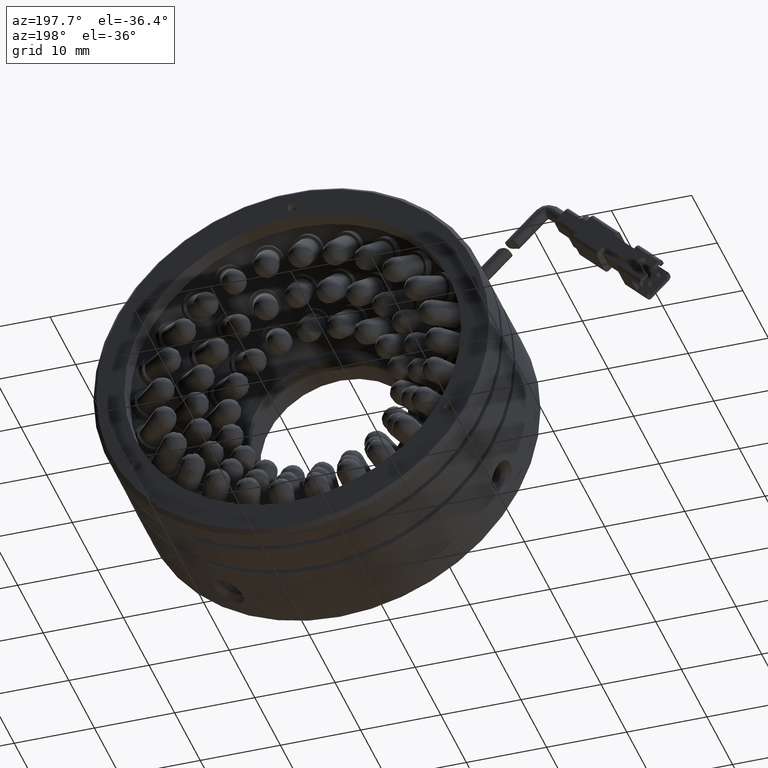
[diagram: clean part render]
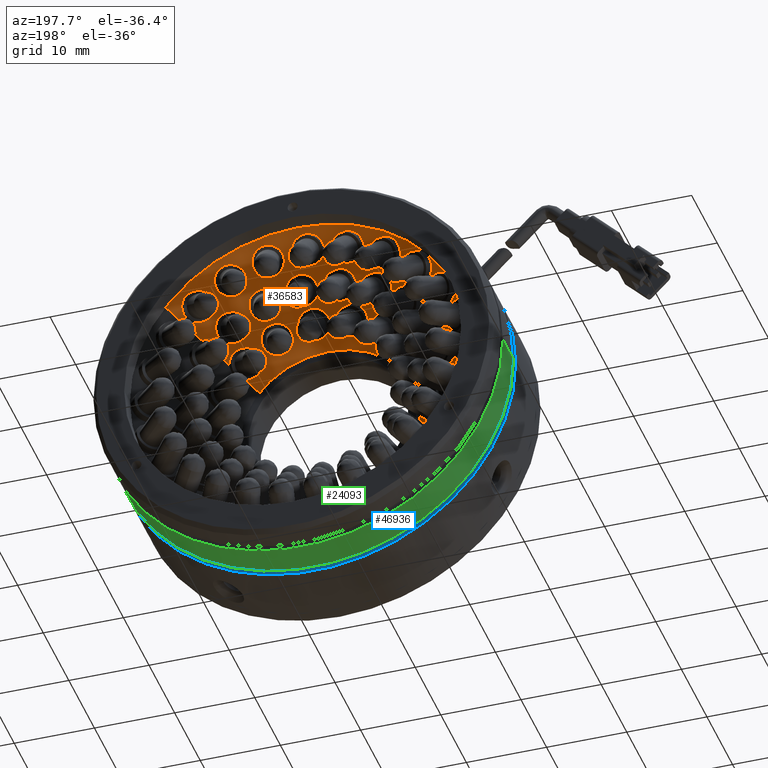
[diagram: same view with three faces highlighted in distinct colors, each labeled with its STEP entity id]
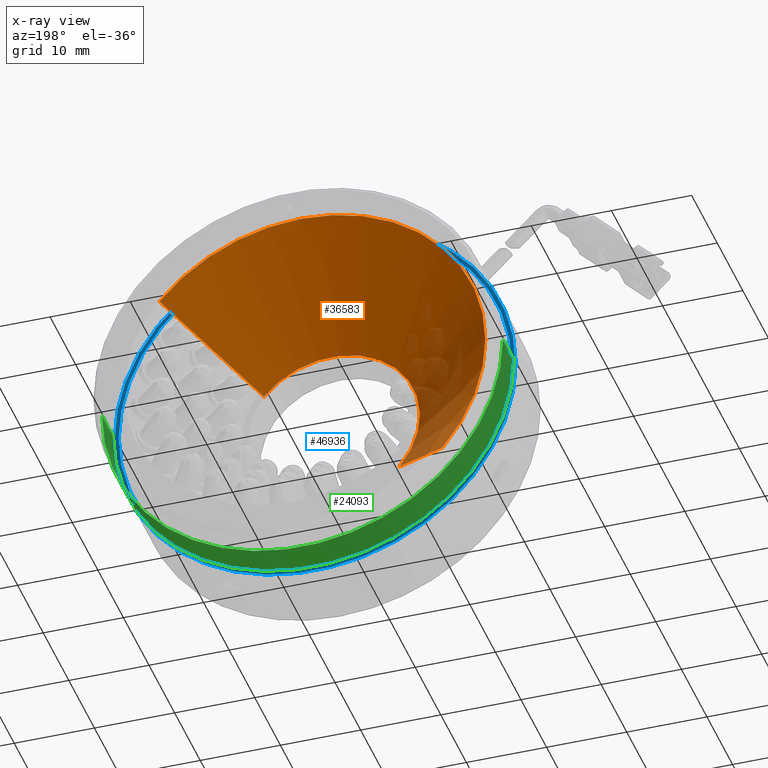
[diagram: x-ray of the same camera — body ghosted, the three highlighted faces saturated]
A machine part, auxiliary view with three faces highlighted in distinct colors.
The next image is the same camera in x-ray (body ghosted, the three faces saturated) — at least one of them is partly hidden behind the body in this view.
Their STEP definitions:

[orange] entity #36583 — the highlighted conical surface has half-angle 45 deg.
#7071 = CARTESIAN_POINT ( 'NONE',  ( 13.62557275425014100, 15.95107685953529900, 14.74545292259360400 ) ) ;
#7480 = VERTEX_POINT ( 'NONE', #54855 ) ;
#8818 = ORIENTED_EDGE ( 'NONE', *, *, #34737, .F. ) ;
#10636 = VECTOR ( 'NONE', #43060, 1000.000000000000100 ) ;
#10975 = CARTESIAN_POINT ( 'NONE',  ( -4.025818638713078100, 3.951076859535329600, 3.557538378468061400E-016 ) ) ;
#14308 = DIRECTION ( 'NONE',  ( 0.5426703717974856700, 0.7071067811865463500, 0.4533308588362150400 ) ) ;
#15074 = VERTEX_POINT ( 'NONE', #47553 ) ;
#15586 = ORIENTED_EDGE ( 'NONE', *, *, #33050, .T. ) ;
#15807 = DIRECTION ( 'NONE',  ( -0.7674517996940528600, 0.0000000000000000000, -0.6411066488084172800 ) ) ;
#15832 = DIRECTION ( 'NONE',  ( 0.7674517996940528600, 0.0000000000000000000, 0.6411066488084172800 ) ) ;
#18623 = DIRECTION ( 'NONE',  ( -0.0000000000000000000, -1.000000000000000000, 0.0000000000000000000 ) ) ;
#19120 = CARTESIAN_POINT ( 'NONE',  ( -21.67721003167629600, 15.95107685953530200, -14.74545292259360700 ) ) ;
#19325 = VECTOR ( 'NONE', #14308, 1000.000000000000100 ) ;
#20530 = CARTESIAN_POINT ( 'NONE',  ( -4.025818638713078100, 15.95107685953530200, 3.557538378468061400E-016 ) ) ;
#20950 = CIRCLE ( 'NONE', #37207, 23.00000000000000400 ) ;
#23076 = EDGE_CURVE ( 'NONE', #7480, #15074, #48368, .T. ) ;
#25354 = DIRECTION ( 'NONE',  ( 0.0000000000000000000, 1.000000000000000000, 0.0000000000000000000 ) ) ;
#27223 = FACE_OUTER_BOUND ( 'NONE', #46145, .T. ) ;
#27702 = ORIENTED_EDGE ( 'NONE', *, *, #38438, .F. ) ;
#32733 = VERTEX_POINT ( 'NONE', #7071 ) ;
#33050 = EDGE_CURVE ( 'NONE', #15074, #54018, #37745, .T. ) ;
#34737 = EDGE_CURVE ( 'NONE', #32733, #54018, #20950, .T. ) ;
#36583 = ADVANCED_FACE ( 'NONE', ( #27223 ), #53399, .F. ) ;
#37207 = AXIS2_PLACEMENT_3D ( 'NONE', #47348, #18623, #52133 ) ;
#37745 = LINE ( 'NONE', #19120, #10636 ) ;
#38438 = EDGE_CURVE ( 'NONE', #7480, #32733, #44835, .T. ) ;
#43060 = DIRECTION ( 'NONE',  ( -0.5426703717974856700, 0.7071067811865463500, -0.4533308588362151600 ) ) ;
#44612 = DIRECTION ( 'NONE',  ( -0.0000000000000000000, -1.000000000000000000, 0.0000000000000000000 ) ) ;
#44835 = LINE ( 'NONE', #47884, #19325 ) ;
#46145 = EDGE_LOOP ( 'NONE', ( #59048, #15586, #8818, #27702 ) ) ;
#47348 = CARTESIAN_POINT ( 'NONE',  ( -4.025818638713078100, 15.95107685953529900, 3.557538378468061400E-016 ) ) ;
#47553 = CARTESIAN_POINT ( 'NONE',  ( -12.46778843534765400, 3.951076859535327800, -7.052173136892588600 ) ) ;
#47884 = CARTESIAN_POINT ( 'NONE',  ( 13.62557275425014500, 15.95107685953530200, 14.74545292259360500 ) ) ;
#48368 = CIRCLE ( 'NONE', #55236, 11.00000000000000200 ) ;
#49798 = AXIS2_PLACEMENT_3D ( 'NONE', #20530, #25354, #15832 ) ;
#51535 = CARTESIAN_POINT ( 'NONE',  ( -21.67721003167629600, 15.95107685953529900, -14.74545292259360500 ) ) ;
#52133 = DIRECTION ( 'NONE',  ( -0.7674517996940528600, 0.0000000000000000000, -0.6411066488084172800 ) ) ;
#53399 = CONICAL_SURFACE ( 'NONE', #49798, 23.00000000000001100, 0.7853981633974499400 ) ;
#54018 = VERTEX_POINT ( 'NONE', #51535 ) ;
#54855 = CARTESIAN_POINT ( 'NONE',  ( 4.416151157921502700, 3.951076859535327800, 7.052173136892588600 ) ) ;
#55236 = AXIS2_PLACEMENT_3D ( 'NONE', #10975, #44612, #15807 ) ;
#59048 = ORIENTED_EDGE ( 'NONE', *, *, #23076, .T. ) ;

[blue] entity #46936 — the highlighted planar face has unit normal (0, -1, 0).
#1064 = AXIS2_PLACEMENT_3D ( 'NONE', #13769, #47351, #18630 ) ;
#1355 = CARTESIAN_POINT ( 'NONE',  ( 20.47418136128692400, 10.36823414706071000, 3.361451086403000600E-015 ) ) ;
#2155 = CIRCLE ( 'NONE', #1064, 25.00000000000000000 ) ;
#13769 = CARTESIAN_POINT ( 'NONE',  ( -4.025818638713078100, 10.36823414706071000, 3.557538378468061400E-016 ) ) ;
#13841 = CARTESIAN_POINT ( 'NONE',  ( -4.025818638713078100, 10.36823414706071000, 3.557538378468061400E-016 ) ) ;
#14075 = DIRECTION ( 'NONE',  ( 0.0000000000000000000, 1.000000000000000000, -0.0000000000000000000 ) ) ;
#15166 = CARTESIAN_POINT ( 'NONE',  ( -28.52581863871307600, 10.36823414706071000, 3.504412472016271700E-016 ) ) ;
#15710 = EDGE_CURVE ( 'NONE', #26388, #17611, #49993, .T. ) ;
#17611 = VERTEX_POINT ( 'NONE', #15166 ) ;
#18630 = DIRECTION ( 'NONE',  ( -1.000000000000000000, 0.0000000000000000000, -2.168404344971001200E-019 ) ) ;
#18708 = DIRECTION ( 'NONE',  ( -1.000000000000000000, 0.0000000000000000000, -2.168404344971005700E-019 ) ) ;
#18783 = FACE_OUTER_BOUND ( 'NONE', #49197, .T. ) ;
#19600 = AXIS2_PLACEMENT_3D ( 'NONE', #29268, #14075, #29252 ) ;
#25608 = CARTESIAN_POINT ( 'NONE',  ( -4.025818638713078100, 10.36823414706071000, 25.00000000000000000 ) ) ;
#25702 = VERTEX_POINT ( 'NONE', #50987 ) ;
#26388 = VERTEX_POINT ( 'NONE', #1355 ) ;
#27026 = DIRECTION ( 'NONE',  ( -0.0000000000000000000, -1.000000000000000000, 0.0000000000000000000 ) ) ;
#27723 = ORIENTED_EDGE ( 'NONE', *, *, #44385, .F. ) ;
#29252 = DIRECTION ( 'NONE',  ( -1.000000000000000000, 0.0000000000000000000, -2.168404344971005700E-019 ) ) ;
#29268 = CARTESIAN_POINT ( 'NONE',  ( -4.025818638713078100, 10.36823414706071000, 3.557538378468061400E-016 ) ) ;
#29864 = VERTEX_POINT ( 'NONE', #57358 ) ;
#30415 = DIRECTION ( 'NONE',  ( 1.000000000000000000, 0.0000000000000000000, 2.168404344971008400E-019 ) ) ;
#30500 = CIRCLE ( 'NONE', #47009, 24.50000000000000000 ) ;
#40162 = EDGE_CURVE ( 'NONE', #25702, #29864, #59050, .T. ) ;
#41750 = ORIENTED_EDGE ( 'NONE', *, *, #55453, .F. ) ;
#43253 = EDGE_LOOP ( 'NONE', ( #41750, #43773 ) ) ;
#43773 = ORIENTED_EDGE ( 'NONE', *, *, #15710, .F. ) ;
#44385 = EDGE_CURVE ( 'NONE', #29864, #25702, #2155, .T. ) ;
#46936 = ADVANCED_FACE ( 'NONE', ( #18783, #56996 ), #58822, .F. ) ;
#47009 = AXIS2_PLACEMENT_3D ( 'NONE', #13841, #47430, #18708 ) ;
#47351 = DIRECTION ( 'NONE',  ( -0.0000000000000000000, -1.000000000000000000, 0.0000000000000000000 ) ) ;
#47430 = DIRECTION ( 'NONE',  ( 0.0000000000000000000, 1.000000000000000000, -0.0000000000000000000 ) ) ;
#49197 = EDGE_LOOP ( 'NONE', ( #58130, #27723 ) ) ;
#49993 = CIRCLE ( 'NONE', #19600, 24.50000000000000000 ) ;
#50987 = CARTESIAN_POINT ( 'NONE',  ( -29.02581863871307600, 10.36823414706071000, 3.503328269843786200E-016 ) ) ;
#54077 = AXIS2_PLACEMENT_3D ( 'NONE', #55676, #27026, #60433 ) ;
#55453 = EDGE_CURVE ( 'NONE', #17611, #26388, #30500, .T. ) ;
#55464 = AXIS2_PLACEMENT_3D ( 'NONE', #25608, #59010, #30415 ) ;
#55676 = CARTESIAN_POINT ( 'NONE',  ( -4.025818638713078100, 10.36823414706071000, 3.557538378468061400E-016 ) ) ;
#56996 = FACE_BOUND ( 'NONE', #43253, .T. ) ;
#57358 = CARTESIAN_POINT ( 'NONE',  ( 20.97418136128692400, 10.36823414706071000, 3.422791846577617100E-015 ) ) ;
#58130 = ORIENTED_EDGE ( 'NONE', *, *, #40162, .F. ) ;
#58822 = PLANE ( 'NONE',  #55464 ) ;
#59010 = DIRECTION ( 'NONE',  ( 0.0000000000000000000, -1.000000000000000000, 0.0000000000000000000 ) ) ;
#59050 = CIRCLE ( 'NONE', #54077, 25.00000000000000000 ) ;
#60433 = DIRECTION ( 'NONE',  ( -1.000000000000000000, 0.0000000000000000000, -2.168404344971001200E-019 ) ) ;

[green] entity #24093 — the highlighted cylindrical surface (partial cylindrical patch) has radius 25 mm, axis along (0, 1, -0).
#1395 = CIRCLE ( 'NONE', #26295, 25.00000000000000000 ) ;
#3292 = CARTESIAN_POINT ( 'NONE',  ( -4.025818638713078100, 11.16823414706071000, 3.557538378468061400E-016 ) ) ;
#3420 = ORIENTED_EDGE ( 'NONE', *, *, #45171, .T. ) ;
#3491 = CARTESIAN_POINT ( 'NONE',  ( -29.02581863871307600, 11.16823414706071000, 3.503328269843786200E-016 ) ) ;
#3575 = FACE_OUTER_BOUND ( 'NONE', #5864, .T. ) ;
#4020 = ORIENTED_EDGE ( 'NONE', *, *, #58668, .T. ) ;
#5864 = EDGE_LOOP ( 'NONE', ( #26088, #16397, #4020, #3420 ) ) ;
#6481 = CARTESIAN_POINT ( 'NONE',  ( -29.02581863871307600, 15.36823414706071000, 3.503328269843786200E-016 ) ) ;
#8133 = DIRECTION ( 'NONE',  ( -1.000000000000000000, 0.0000000000000000000, -2.168404344971001200E-019 ) ) ;
#10337 = AXIS2_PLACEMENT_3D ( 'NONE', #33159, #28348, #23758 ) ;
#11333 = CARTESIAN_POINT ( 'NONE',  ( 20.97418136128692400, 11.16823414706071000, 3.422791846577617100E-015 ) ) ;
#11529 = CARTESIAN_POINT ( 'NONE',  ( -4.025818638713078100, 15.36823414706071000, 3.557538378468061400E-016 ) ) ;
#13935 = CARTESIAN_POINT ( 'NONE',  ( -29.02581863871307600, 2.168234147060708900, 3.503328269843786200E-016 ) ) ;
#16341 = DIRECTION ( 'NONE',  ( -1.000000000000000000, 0.0000000000000000000, -2.168404344971001200E-019 ) ) ;
#16397 = ORIENTED_EDGE ( 'NONE', *, *, #21854, .T. ) ;
#20853 = AXIS2_PLACEMENT_3D ( 'NONE', #11529, #45153, #16341 ) ;
#20948 = DIRECTION ( 'NONE',  ( 0.0000000000000000000, 1.000000000000000000, -0.0000000000000000000 ) ) ;
#21854 = EDGE_CURVE ( 'NONE', #45792, #24031, #1395, .T. ) ;
#23283 = CARTESIAN_POINT ( 'NONE',  ( 20.97418136128692400, 15.36823414706071000, 3.422791846577617100E-015 ) ) ;
#23758 = DIRECTION ( 'NONE',  ( -1.000000000000000000, 0.0000000000000000000, -2.168404344971001200E-019 ) ) ;
#23996 = VECTOR ( 'NONE', #32848, 1000.000000000000000 ) ;
#24031 = VERTEX_POINT ( 'NONE', #3491 ) ;
#24093 = ADVANCED_FACE ( 'NONE', ( #3575 ), #48691, .T. ) ;
#26088 = ORIENTED_EDGE ( 'NONE', *, *, #49466, .F. ) ;
#26295 = AXIS2_PLACEMENT_3D ( 'NONE', #3292, #36968, #8133 ) ;
#27197 = VECTOR ( 'NONE', #20948, 1000.000000000000000 ) ;
#28348 = DIRECTION ( 'NONE',  ( 0.0000000000000000000, 1.000000000000000000, -0.0000000000000000000 ) ) ;
#31395 = CIRCLE ( 'NONE', #20853, 25.00000000000000000 ) ;
#32848 = DIRECTION ( 'NONE',  ( 0.0000000000000000000, 1.000000000000000000, -0.0000000000000000000 ) ) ;
#33159 = CARTESIAN_POINT ( 'NONE',  ( -4.025818638713078100, 2.168234147060708900, 3.557538378468061400E-016 ) ) ;
#35211 = CARTESIAN_POINT ( 'NONE',  ( 20.97418136128692400, 2.168234147060708900, 3.422791846577617100E-015 ) ) ;
#36968 = DIRECTION ( 'NONE',  ( 0.0000000000000000000, 1.000000000000000000, -0.0000000000000000000 ) ) ;
#39977 = LINE ( 'NONE', #35211, #27197 ) ;
#44401 = VERTEX_POINT ( 'NONE', #23283 ) ;
#45153 = DIRECTION ( 'NONE',  ( -0.0000000000000000000, -1.000000000000000000, 0.0000000000000000000 ) ) ;
#45171 = EDGE_CURVE ( 'NONE', #52270, #44401, #31395, .T. ) ;
#45792 = VERTEX_POINT ( 'NONE', #11333 ) ;
#47951 = LINE ( 'NONE', #13935, #23996 ) ;
#48691 = CYLINDRICAL_SURFACE ( 'NONE', #10337, 25.00000000000000000 ) ;
#49466 = EDGE_CURVE ( 'NONE', #45792, #44401, #39977, .T. ) ;
#52270 = VERTEX_POINT ( 'NONE', #6481 ) ;
#58668 = EDGE_CURVE ( 'NONE', #24031, #52270, #47951, .T. ) ;